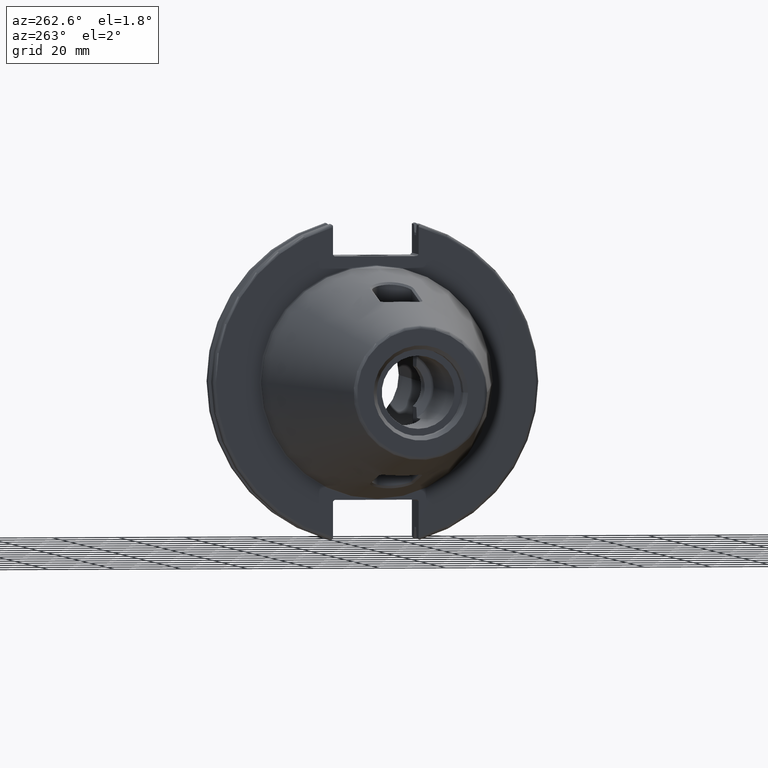
[diagram: clean part render]
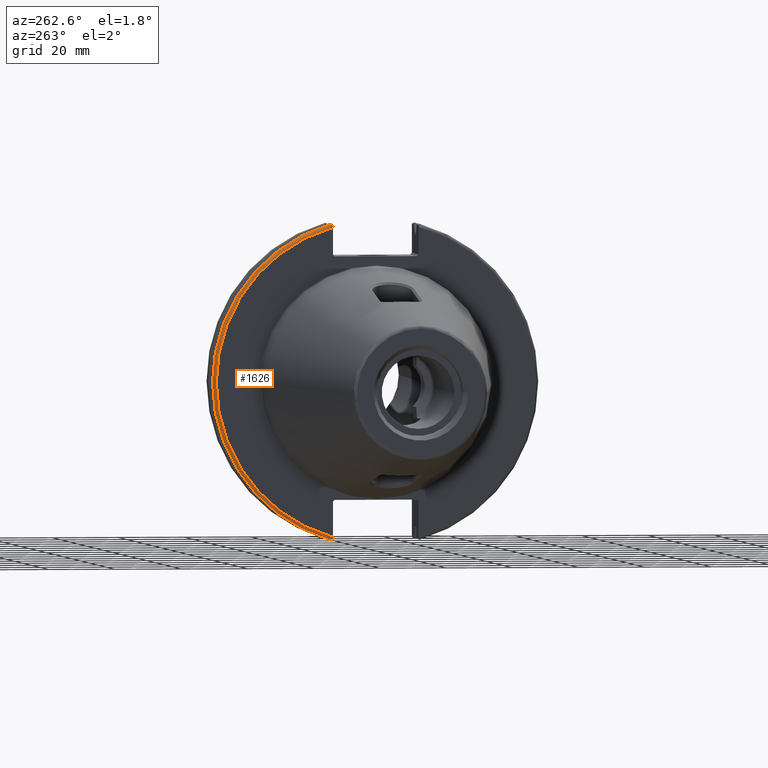
[diagram: same view with one face highlighted and labeled with its STEP entity id]
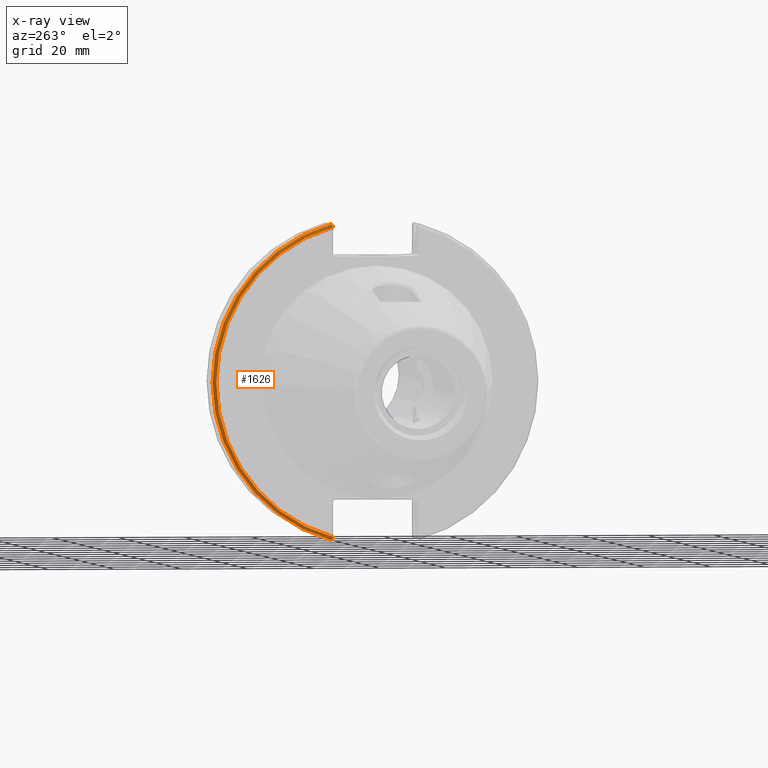
[diagram: x-ray of the same camera — body ghosted, the highlighted face saturated]
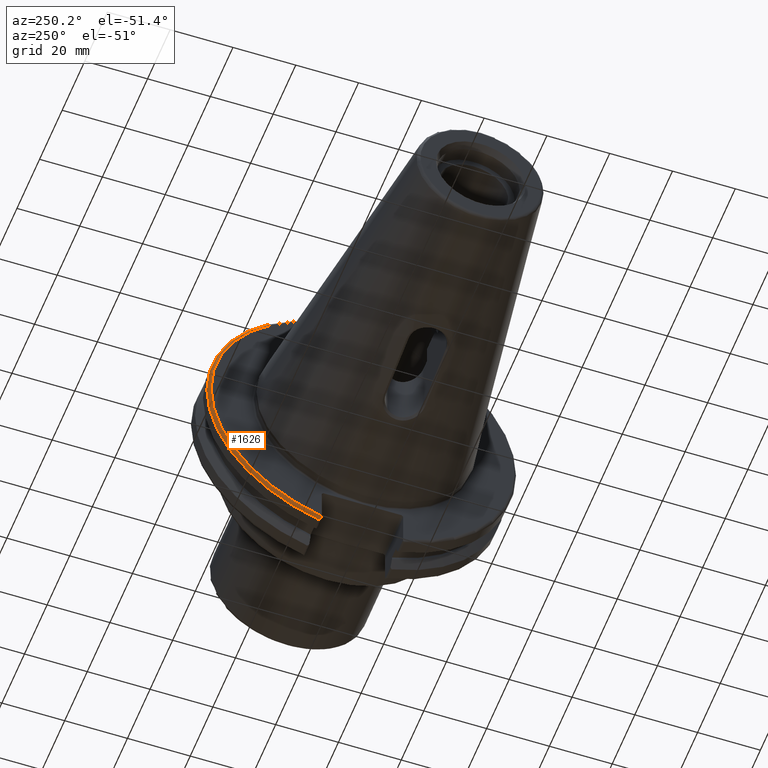
[diagram: same view with one face highlighted and labeled with its STEP entity id]
A machine part, auxiliary view. The second image highlights one B-rep face of the part: STEP entity #1626.
The next image is the same camera in x-ray: the body ghosted, the highlighted face saturated — about 0% of this face is hidden behind the body in this view.
A second angle (auxiliary view) of the same face is appended — the face is thin or edge-on in the first view.
In plain terms, the highlighted toroidal blend (fillet) surface has major radius 48.2125 mm and minor (blend) radius 1 mm.
Its self-contained STEP definition (entity closure, byte-faithful):
#23=TOROIDAL_SURFACE('',#1769,48.2125,1.);
#73=CIRCLE('',#1752,48.2125);
#79=CIRCLE('',#1770,49.2125);
#240=FACE_OUTER_BOUND('',#337,.T.);
#337=EDGE_LOOP('',(#1399,#1400,#1401,#1402,#1403,#1404));
#417=B_SPLINE_CURVE_WITH_KNOTS('',3,(#3292,#3293,#3294,#3295,#3296,#3297),
 .UNSPECIFIED.,.F.,.F.,(4,2,4),(0.0976892167532858,0.112000071948292,0.150881870548587),
 .UNSPECIFIED.);
#426=B_SPLINE_CURVE_WITH_KNOTS('',3,(#3436,#3437,#3438,#3439,#3440,#3441,
#3442,#3443),.UNSPECIFIED.,.F.,.F.,(4,2,2,4),(-0.104075769062722,-0.0730268503455479,
-0.0343639873656265,0.),.UNSPECIFIED.);
#427=B_SPLINE_CURVE_WITH_KNOTS('',3,(#3446,#3447,#3448,#3449,#3450,#3451,
#3452,#3453),.UNSPECIFIED.,.F.,.F.,(4,2,2,4),(0.,0.0343639873656266,0.0730268503455482,
0.104075769062722),.UNSPECIFIED.);
#428=B_SPLINE_CURVE_WITH_KNOTS('',3,(#3454,#3455,#3456,#3457,#3458,#3459),
 .UNSPECIFIED.,.F.,.F.,(4,2,4),(0.452859340315923,0.491741138916218,0.506051994111224),
 .UNSPECIFIED.);
#747=VERTEX_POINT('',#3230);
#748=VERTEX_POINT('',#3232);
#760=VERTEX_POINT('',#3291);
#788=VERTEX_POINT('',#3434);
#789=VERTEX_POINT('',#3435);
#790=VERTEX_POINT('',#3444);
#953=EDGE_CURVE('',#748,#747,#73,.T.);
#970=EDGE_CURVE('',#760,#748,#417,.T.);
#1008=EDGE_CURVE('',#788,#789,#426,.T.);
#1009=EDGE_CURVE('',#789,#790,#79,.T.);
#1010=EDGE_CURVE('',#790,#760,#427,.T.);
#1011=EDGE_CURVE('',#747,#788,#428,.T.);
#1399=ORIENTED_EDGE('',*,*,#1008,.T.);
#1400=ORIENTED_EDGE('',*,*,#1009,.T.);
#1401=ORIENTED_EDGE('',*,*,#1010,.T.);
#1402=ORIENTED_EDGE('',*,*,#970,.T.);
#1403=ORIENTED_EDGE('',*,*,#953,.T.);
#1404=ORIENTED_EDGE('',*,*,#1011,.T.);
#1626=ADVANCED_FACE('',(#240),#23,.T.);
#1752=AXIS2_PLACEMENT_3D('',#3233,#2024,#2025);
#1769=AXIS2_PLACEMENT_3D('',#3433,#2085,#2086);
#1770=AXIS2_PLACEMENT_3D('',#3445,#2087,#2088);
#2024=DIRECTION('center_axis',(1.,0.,0.));
#2025=DIRECTION('ref_axis',(0.,1.,-6.12323399573677E-17));
#2085=DIRECTION('center_axis',(1.,0.,0.));
#2086=DIRECTION('ref_axis',(0.,0.,-1.));
#2087=DIRECTION('center_axis',(-1.,0.,0.));
#2088=DIRECTION('ref_axis',(0.,1.,-6.12323399573677E-17));
#3230=CARTESIAN_POINT('',(3.175,12.95,46.4407434937254));
#3232=CARTESIAN_POINT('',(3.175,12.95,-46.4407434937254));
#3233=CARTESIAN_POINT('Origin',(3.175,0.,0.));
#3291=CARTESIAN_POINT('',(3.31949794294344,12.95,-46.9780755322918));
#3292=CARTESIAN_POINT('Ctrl Pts',(3.31949794294344,12.95,-46.9780755322918));
#3293=CARTESIAN_POINT('Ctrl Pts',(3.29341556483839,12.95,-46.9333752207329));
#3294=CARTESIAN_POINT('Ctrl Pts',(3.27115672912336,12.95,-46.887363294568));
#3295=CARTESIAN_POINT('Ctrl Pts',(3.20453530071253,12.95,-46.7230464903732));
#3296=CARTESIAN_POINT('Ctrl Pts',(3.175,12.95,-46.5703494890597));
#3297=CARTESIAN_POINT('Ctrl Pts',(3.175,12.95,-46.4407434937254));
#3433=CARTESIAN_POINT('Origin',(4.175,0.,0.));
#3434=CARTESIAN_POINT('',(3.31949794294344,12.95,46.9780755322918));
#3435=CARTESIAN_POINT('',(4.175,13.4317035994433,47.3440544806494));
#3436=CARTESIAN_POINT('Ctrl Pts',(3.31949794294344,12.95,46.9780755322918));
#3437=CARTESIAN_POINT('Ctrl Pts',(3.36785032278754,13.0300321736484,47.0388807469102));
#3438=CARTESIAN_POINT('Ctrl Pts',(3.43235971798504,13.1083611826073,47.0983919657547));
#3439=CARTESIAN_POINT('Ctrl Pts',(3.58507512107923,13.2478194810695,47.2043467509586));
#3440=CARTESIAN_POINT('Ctrl Pts',(3.70638116490965,13.3242014686233,47.2623787015413));
#3441=CARTESIAN_POINT('Ctrl Pts',(3.92661103245834,13.4067722493645,47.3251126473446));
#3442=CARTESIAN_POINT('Ctrl Pts',(4.06045337544791,13.4317035994433,47.3440544806494));
#3443=CARTESIAN_POINT('Ctrl Pts',(4.175,13.4317035994433,47.3440544806494));
#3444=CARTESIAN_POINT('',(4.175,13.4317035994433,-47.3440544806494));
#3445=CARTESIAN_POINT('Origin',(4.175,0.,0.));
#3446=CARTESIAN_POINT('Ctrl Pts',(4.175,13.4317035994433,-47.3440544806494));
#3447=CARTESIAN_POINT('Ctrl Pts',(4.06045337544791,13.4317035994433,-47.3440544806494));
#3448=CARTESIAN_POINT('Ctrl Pts',(3.92661103245834,13.4067722493645,-47.3251126473446));
#3449=CARTESIAN_POINT('Ctrl Pts',(3.70638116490964,13.3242014686232,-47.2623787015413));
#3450=CARTESIAN_POINT('Ctrl Pts',(3.58507512107923,13.2478194810695,-47.2043467509586));
#3451=CARTESIAN_POINT('Ctrl Pts',(3.43235971798504,13.1083611826073,-47.0983919657547));
#3452=CARTESIAN_POINT('Ctrl Pts',(3.36785032278754,13.0300321736484,-47.0388807469102));
#3453=CARTESIAN_POINT('Ctrl Pts',(3.31949794294344,12.95,-46.9780755322918));
#3454=CARTESIAN_POINT('Ctrl Pts',(3.175,12.95,46.4407434937254));
#3455=CARTESIAN_POINT('Ctrl Pts',(3.175,12.95,46.5703494890597));
#3456=CARTESIAN_POINT('Ctrl Pts',(3.20453530071253,12.95,46.7230464903732));
#3457=CARTESIAN_POINT('Ctrl Pts',(3.27115672912336,12.95,46.887363294568));
#3458=CARTESIAN_POINT('Ctrl Pts',(3.29341556483839,12.95,46.9333752207329));
#3459=CARTESIAN_POINT('Ctrl Pts',(3.31949794294344,12.95,46.9780755322918));